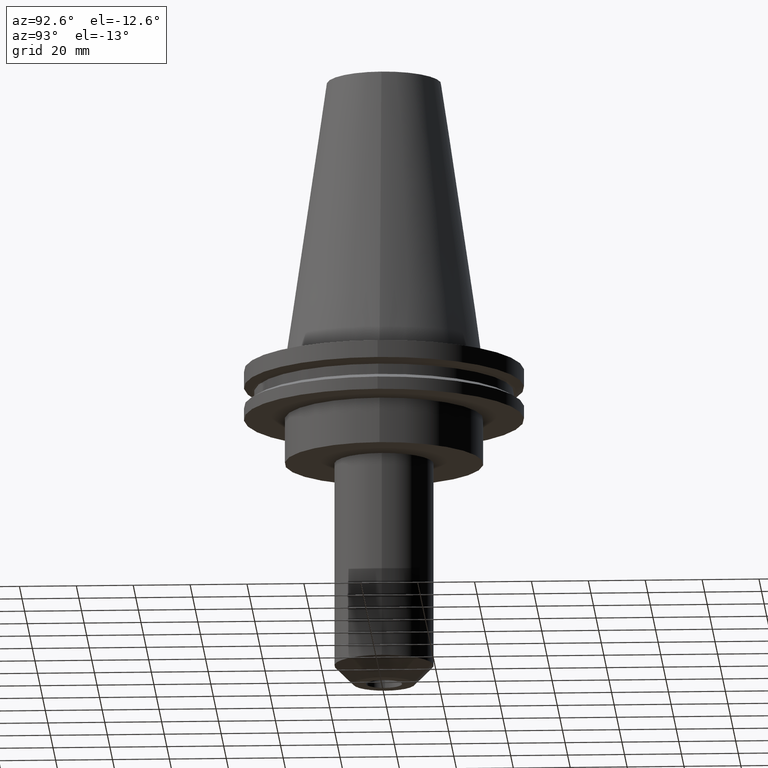
[diagram: clean part render]
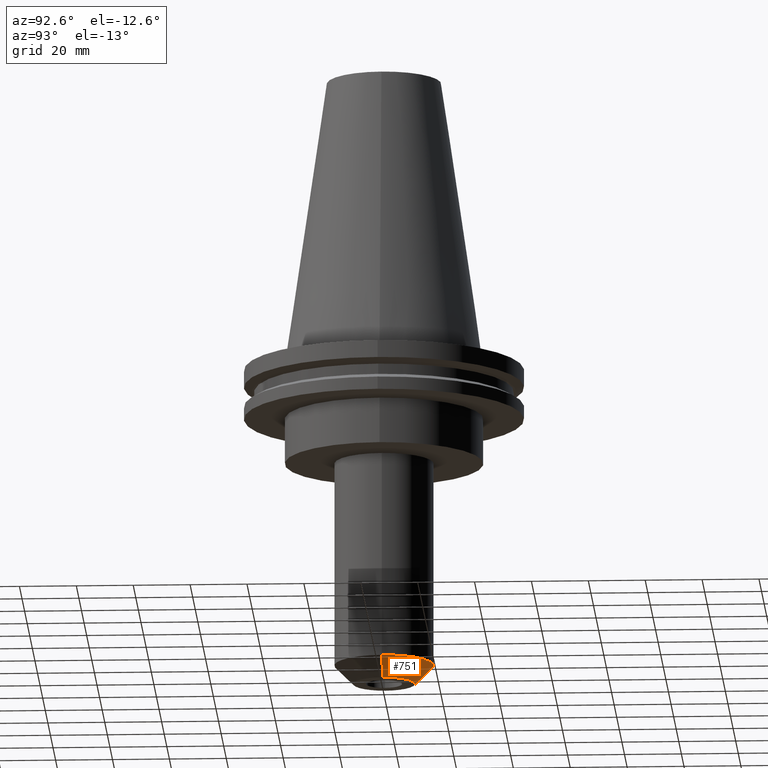
[diagram: same view with one face highlighted and labeled with its STEP entity id]
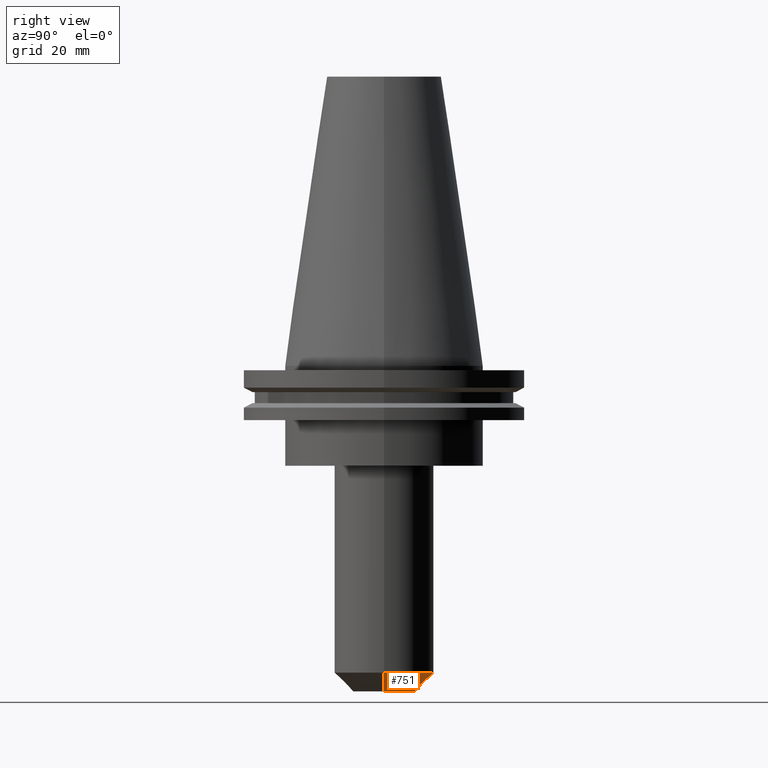
[diagram: same view with one face highlighted and labeled with its STEP entity id]
A machine part, auxiliary view. The second image highlights one B-rep face of the part: STEP entity #751.
A second angle (right view) of the same face is appended — the face is thin or edge-on in the first view.
In plain terms, the highlighted conical surface has half-angle 45 deg.
Its self-contained STEP definition (entity closure, byte-faithful):
#18 = DIRECTION ( 'NONE',  ( 0.7071067811865481278, 0.000000000000000000, 0.7071067811865470176 ) ) ;
#26 = LINE ( 'NONE', #290, #71 ) ;
#31 = LINE ( 'NONE', #90, #442 ) ;
#69 = VERTEX_POINT ( 'NONE', #225 ) ;
#71 = VECTOR ( 'NONE', #552, 1000.000000000000000 ) ;
#73 = ORIENTED_EDGE ( 'NONE', *, *, #548, .T. ) ;
#84 = CARTESIAN_POINT ( 'NONE',  ( -17.44999999999999218, 2.137008664512130386E-15, -107.7000000000000028 ) ) ;
#90 = CARTESIAN_POINT ( 'NONE',  ( 10.84999999999998899, 0.000000000000000000, -114.2999999999999972 ) ) ;
#135 = EDGE_LOOP ( 'NONE', ( #678, #73, #585, #803 ) ) ;
#153 = DIRECTION ( 'NONE',  ( -0.000000000000000000, -0.000000000000000000, 1.000000000000000000 ) ) ;
#219 = CIRCLE ( 'NONE', #260, 10.84999999999998899 ) ;
#225 = CARTESIAN_POINT ( 'NONE',  ( -10.84999999999998899, 1.732875220793503490E-15, -114.2999999999999972 ) ) ;
#260 = AXIS2_PLACEMENT_3D ( 'NONE', #744, #410, #283 ) ;
#273 = CONICAL_SURFACE ( 'NONE', #763, 10.84999999999998899, 0.7853981633974490562 ) ;
#283 = DIRECTION ( 'NONE',  ( 1.000000000000000000, 0.000000000000000000, 0.000000000000000000 ) ) ;
#290 = CARTESIAN_POINT ( 'NONE',  ( -10.84999999999998899, 1.328741777074876791E-15, -114.2999999999999972 ) ) ;
#300 = EDGE_CURVE ( 'NONE', #559, #69, #219, .T. ) ;
#335 = VERTEX_POINT ( 'NONE', #84 ) ;
#350 = CARTESIAN_POINT ( 'NONE',  ( 0.000000000000000000, 0.000000000000000000, -114.2999999999999972 ) ) ;
#364 = VERTEX_POINT ( 'NONE', #596 ) ;
#395 = CARTESIAN_POINT ( 'NONE',  ( 0.000000000000000000, 0.000000000000000000, -107.7000000000000028 ) ) ;
#410 = DIRECTION ( 'NONE',  ( -0.000000000000000000, -0.000000000000000000, 1.000000000000000000 ) ) ;
#442 = VECTOR ( 'NONE', #18, 1000.000000000000000 ) ;
#548 = EDGE_CURVE ( 'NONE', #69, #335, #26, .T. ) ;
#552 = DIRECTION ( 'NONE',  ( -0.7071067811865481278, 8.659560562354940254E-17, 0.7071067811865470176 ) ) ;
#559 = VERTEX_POINT ( 'NONE', #591 ) ;
#585 = ORIENTED_EDGE ( 'NONE', *, *, #663, .F. ) ;
#591 = CARTESIAN_POINT ( 'NONE',  ( 10.84999999999998899, 0.000000000000000000, -114.2999999999999972 ) ) ;
#596 = CARTESIAN_POINT ( 'NONE',  ( 17.44999999999999218, 0.000000000000000000, -107.7000000000000028 ) ) ;
#598 = DIRECTION ( 'NONE',  ( -0.000000000000000000, -0.000000000000000000, 1.000000000000000000 ) ) ;
#618 = AXIS2_PLACEMENT_3D ( 'NONE', #395, #598, #782 ) ;
#663 = EDGE_CURVE ( 'NONE', #364, #335, #674, .T. ) ;
#674 = CIRCLE ( 'NONE', #618, 17.44999999999999218 ) ;
#678 = ORIENTED_EDGE ( 'NONE', *, *, #300, .T. ) ;
#744 = CARTESIAN_POINT ( 'NONE',  ( 0.000000000000000000, 0.000000000000000000, -114.2999999999999972 ) ) ;
#751 = ADVANCED_FACE ( 'NONE', ( #821 ), #273, .T. ) ;
#763 = AXIS2_PLACEMENT_3D ( 'NONE', #350, #153, #804 ) ;
#782 = DIRECTION ( 'NONE',  ( 1.000000000000000000, 0.000000000000000000, 0.000000000000000000 ) ) ;
#795 = EDGE_CURVE ( 'NONE', #559, #364, #31, .T. ) ;
#803 = ORIENTED_EDGE ( 'NONE', *, *, #795, .F. ) ;
#804 = DIRECTION ( 'NONE',  ( 1.000000000000000000, 0.000000000000000000, 0.000000000000000000 ) ) ;
#821 = FACE_OUTER_BOUND ( 'NONE', #135, .T. ) ;